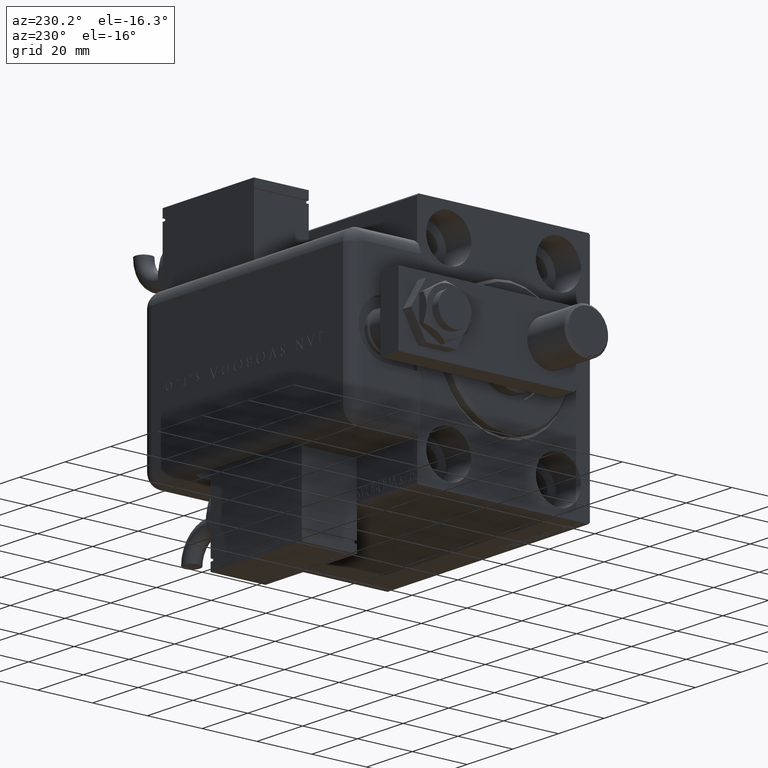
[diagram: clean part render]
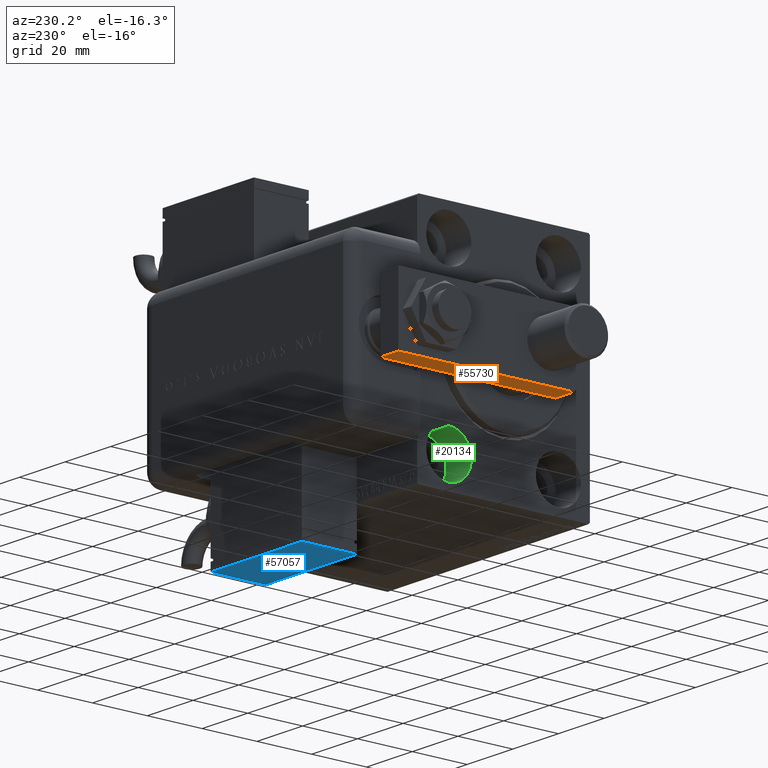
[diagram: same view with three faces highlighted in distinct colors, each labeled with its STEP entity id]
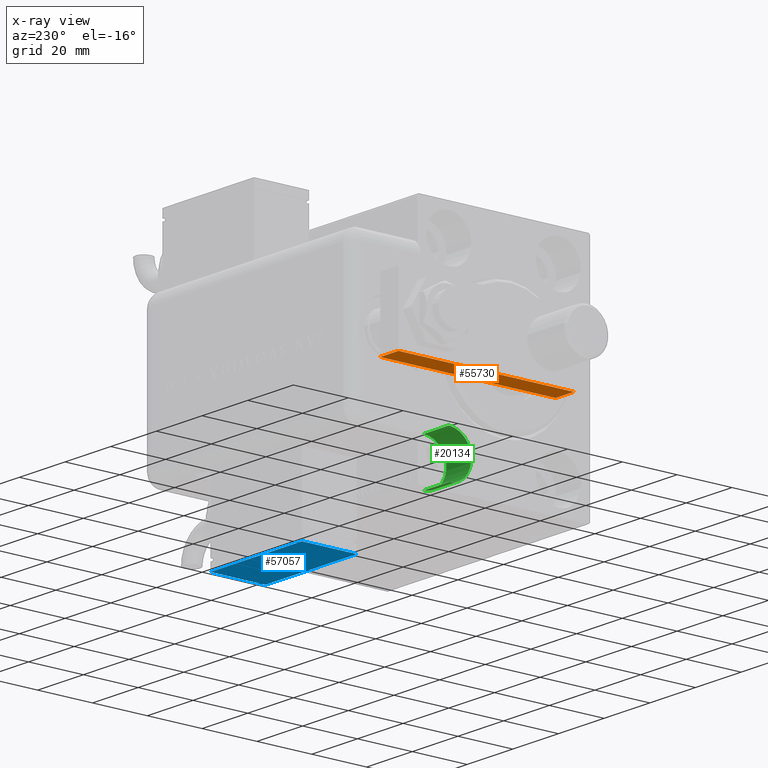
[diagram: x-ray of the same camera — body ghosted, the three highlighted faces saturated]
A machine part, auxiliary view with three faces highlighted in distinct colors.
The next image is the same camera in x-ray (body ghosted, the three faces saturated) — at least one of them is partly hidden behind the body in this view.
Their STEP definitions:

[orange] entity #55730 — the highlighted planar face has unit normal (0, -0, 1).
#1251 = PLANE ( 'NONE',  #55649 ) ;
#2370 = CARTESIAN_POINT ( 'NONE',  ( 12.50000000000001066, 0.000000000000000000, 8.000000000000000000 ) ) ;
#6522 = EDGE_CURVE ( 'NONE', #49824, #42881, #30844, .T. ) ;
#8426 = LINE ( 'NONE', #49368, #34788 ) ;
#10342 = DIRECTION ( 'NONE',  ( 1.257045997084642611E-16, -1.000000000000000000, 0.000000000000000000 ) ) ;
#11127 = CARTESIAN_POINT ( 'NONE',  ( 12.50000000000000178, 69.00000000000000000, 0.000000000000000000 ) ) ;
#14070 = VERTEX_POINT ( 'NONE', #11127 ) ;
#14817 = VECTOR ( 'NONE', #24721, 1000.000000000000000 ) ;
#15630 = CARTESIAN_POINT ( 'NONE',  ( 12.50000000000000178, 69.00000000000000000, 8.000000000000000000 ) ) ;
#17747 = EDGE_CURVE ( 'NONE', #40878, #14070, #8426, .T. ) ;
#19445 = FACE_OUTER_BOUND ( 'NONE', #37268, .T. ) ;
#19771 = CARTESIAN_POINT ( 'NONE',  ( 12.50000000000001066, 5.000000000000003553, 0.000000000000000000 ) ) ;
#21916 = VECTOR ( 'NONE', #51595, 1000.000000000000000 ) ;
#23990 = LINE ( 'NONE', #43081, #21916 ) ;
#24144 = VECTOR ( 'NONE', #30546, 1000.000000000000000 ) ;
#24721 = DIRECTION ( 'NONE',  ( -0.000000000000000000, -0.000000000000000000, -1.000000000000000000 ) ) ;
#25370 = CARTESIAN_POINT ( 'NONE',  ( 12.50000000000001066, 5.000000000000003553, 8.000000000000000000 ) ) ;
#25613 = LINE ( 'NONE', #15630, #14817 ) ;
#30546 = DIRECTION ( 'NONE',  ( -1.257045997084642611E-16, 1.000000000000000000, 0.000000000000000000 ) ) ;
#30844 = LINE ( 'NONE', #2370, #24144 ) ;
#34314 = CARTESIAN_POINT ( 'NONE',  ( 12.50000000000000178, 69.00000000000000000, 8.000000000000000000 ) ) ;
#34788 = VECTOR ( 'NONE', #54230, 1000.000000000000000 ) ;
#36328 = ORIENTED_EDGE ( 'NONE', *, *, #50850, .F. ) ;
#37040 = CARTESIAN_POINT ( 'NONE',  ( 12.50000000000001066, 0.000000000000000000, 8.000000000000000000 ) ) ;
#37268 = EDGE_LOOP ( 'NONE', ( #50620, #48027, #40651, #36328 ) ) ;
#40651 = ORIENTED_EDGE ( 'NONE', *, *, #17747, .T. ) ;
#40878 = VERTEX_POINT ( 'NONE', #19771 ) ;
#42881 = VERTEX_POINT ( 'NONE', #34314 ) ;
#43081 = CARTESIAN_POINT ( 'NONE',  ( 12.50000000000001066, 5.000000000000003553, 8.000000000000000000 ) ) ;
#43156 = EDGE_CURVE ( 'NONE', #49824, #40878, #23990, .T. ) ;
#48027 = ORIENTED_EDGE ( 'NONE', *, *, #43156, .T. ) ;
#49368 = CARTESIAN_POINT ( 'NONE',  ( 12.50000000000001066, 0.000000000000000000, 0.000000000000000000 ) ) ;
#49824 = VERTEX_POINT ( 'NONE', #25370 ) ;
#50620 = ORIENTED_EDGE ( 'NONE', *, *, #6522, .F. ) ;
#50850 = EDGE_CURVE ( 'NONE', #42881, #14070, #25613, .T. ) ;
#51595 = DIRECTION ( 'NONE',  ( 0.000000000000000000, 0.000000000000000000, -1.000000000000000000 ) ) ;
#52202 = DIRECTION ( 'NONE',  ( -1.000000000000000000, -1.257045997084642611E-16, 0.000000000000000000 ) ) ;
#54230 = DIRECTION ( 'NONE',  ( -1.257045997084642611E-16, 1.000000000000000000, 0.000000000000000000 ) ) ;
#55649 = AXIS2_PLACEMENT_3D ( 'NONE', #37040, #52202, #10342 ) ;
#55730 = ADVANCED_FACE ( 'NONE', ( #19445 ), #1251, .F. ) ;

[blue] entity #57057 — the highlighted planar face has unit normal (0, 0, 1).
#6322 = CARTESIAN_POINT ( 'NONE',  ( 20.00000000000005329, -17.49999999999996092, -9.999999999999998224 ) ) ;
#6857 = DIRECTION ( 'NONE',  ( 1.000000000000000000, 0.000000000000000000, 0.000000000000000000 ) ) ;
#8022 = CARTESIAN_POINT ( 'NONE',  ( 0.000000000000000000, -17.49999999999996092, 0.000000000000000000 ) ) ;
#8318 = DIRECTION ( 'NONE',  ( 0.000000000000000000, -0.000000000000000000, 1.000000000000000000 ) ) ;
#11582 = LINE ( 'NONE', #12485, #51572 ) ;
#12240 = ORIENTED_EDGE ( 'NONE', *, *, #37558, .T. ) ;
#12485 = CARTESIAN_POINT ( 'NONE',  ( 20.00000000000005329, -17.49999999999996092, -9.999999999999998224 ) ) ;
#13220 = DIRECTION ( 'NONE',  ( -1.000000000000000000, -0.000000000000000000, -0.000000000000000000 ) ) ;
#13448 = PLANE ( 'NONE',  #41167 ) ;
#15965 = DIRECTION ( 'NONE',  ( -0.000000000000000000, -0.000000000000000000, -1.000000000000000000 ) ) ;
#17400 = DIRECTION ( 'NONE',  ( 0.000000000000000000, 1.000000000000000000, 0.000000000000000000 ) ) ;
#17763 = LINE ( 'NONE', #36267, #20654 ) ;
#20211 = LINE ( 'NONE', #38711, #43986 ) ;
#20654 = VECTOR ( 'NONE', #13220, 1000.000000000000000 ) ;
#24011 = VERTEX_POINT ( 'NONE', #41664 ) ;
#29452 = EDGE_CURVE ( 'NONE', #54100, #24011, #11582, .T. ) ;
#31608 = EDGE_LOOP ( 'NONE', ( #38344, #32391, #12240, #56790 ) ) ;
#32391 = ORIENTED_EDGE ( 'NONE', *, *, #51986, .T. ) ;
#35234 = DIRECTION ( 'NONE',  ( 0.000000000000000000, 0.000000000000000000, 1.000000000000000000 ) ) ;
#36083 = VERTEX_POINT ( 'NONE', #40010 ) ;
#36267 = CARTESIAN_POINT ( 'NONE',  ( -19.99999999999994316, -17.49999999999996092, 10.00000000000000000 ) ) ;
#36566 = CARTESIAN_POINT ( 'NONE',  ( -19.99999999999994316, -17.49999999999996092, 10.00000000000000000 ) ) ;
#37558 = EDGE_CURVE ( 'NONE', #56713, #36083, #20211, .T. ) ;
#38344 = ORIENTED_EDGE ( 'NONE', *, *, #29452, .T. ) ;
#38711 = CARTESIAN_POINT ( 'NONE',  ( -19.99999999999994316, -17.49999999999996092, -9.999999999999998224 ) ) ;
#40010 = CARTESIAN_POINT ( 'NONE',  ( -19.99999999999994316, -17.49999999999996092, -9.999999999999998224 ) ) ;
#41167 = AXIS2_PLACEMENT_3D ( 'NONE', #8022, #17400, #8318 ) ;
#41664 = CARTESIAN_POINT ( 'NONE',  ( 20.00000000000005329, -17.49999999999996092, 10.00000000000000000 ) ) ;
#43986 = VECTOR ( 'NONE', #15965, 1000.000000000000000 ) ;
#44117 = LINE ( 'NONE', #48374, #45770 ) ;
#45770 = VECTOR ( 'NONE', #6857, 1000.000000000000000 ) ;
#48374 = CARTESIAN_POINT ( 'NONE',  ( -19.99999999999994316, -17.49999999999996092, -9.999999999999998224 ) ) ;
#50922 = EDGE_CURVE ( 'NONE', #36083, #54100, #44117, .T. ) ;
#51572 = VECTOR ( 'NONE', #35234, 1000.000000000000000 ) ;
#51986 = EDGE_CURVE ( 'NONE', #24011, #56713, #17763, .T. ) ;
#54100 = VERTEX_POINT ( 'NONE', #6322 ) ;
#55016 = FACE_OUTER_BOUND ( 'NONE', #31608, .T. ) ;
#56713 = VERTEX_POINT ( 'NONE', #36566 ) ;
#56790 = ORIENTED_EDGE ( 'NONE', *, *, #50922, .T. ) ;
#57057 = ADVANCED_FACE ( 'NONE', ( #55016 ), #13448, .F. ) ;

[green] entity #20134 — the highlighted cylindrical surface (edge-blend (fillet) strip) has radius 8.25 mm, axis along (-1, -0, -0).
#612 = EDGE_CURVE ( 'NONE', #31782, #18351, #37986, .T. ) ;
#1178 = DIRECTION ( 'NONE',  ( 0.000000000000000000, 0.000000000000000000, 1.000000000000000000 ) ) ;
#1512 = CARTESIAN_POINT ( 'NONE',  ( 11.00000000000000000, 19.99999999999999645, -39.74999999999999289 ) ) ;
#3206 = DIRECTION ( 'NONE',  ( -1.000000000000000000, 0.000000000000000000, 0.000000000000000000 ) ) ;
#4802 = AXIS2_PLACEMENT_3D ( 'NONE', #7768, #3206, #31972 ) ;
#6231 = ORIENTED_EDGE ( 'NONE', *, *, #35390, .F. ) ;
#7768 = CARTESIAN_POINT ( 'NONE',  ( 11.00000000000000000, 19.99999999999999645, -31.49999999999999289 ) ) ;
#9544 = FACE_OUTER_BOUND ( 'NONE', #48767, .T. ) ;
#10137 = VECTOR ( 'NONE', #22613, 1000.000000000000000 ) ;
#10586 = ORIENTED_EDGE ( 'NONE', *, *, #24596, .T. ) ;
#10742 = DIRECTION ( 'NONE',  ( 0.000000000000000000, 0.000000000000000000, 1.000000000000000000 ) ) ;
#14511 = DIRECTION ( 'NONE',  ( -1.000000000000000000, 0.000000000000000000, 0.000000000000000000 ) ) ;
#16788 = ORIENTED_EDGE ( 'NONE', *, *, #612, .T. ) ;
#18351 = VERTEX_POINT ( 'NONE', #40775 ) ;
#18376 = EDGE_CURVE ( 'NONE', #31782, #51581, #48386, .T. ) ;
#19190 = CARTESIAN_POINT ( 'NONE',  ( 11.00000000000000000, 19.99999999999999645, -23.24999999999999289 ) ) ;
#20134 = ADVANCED_FACE ( 'NONE', ( #9544 ), #47732, .F. ) ;
#22613 = DIRECTION ( 'NONE',  ( -1.000000000000000000, -0.000000000000000000, -0.000000000000000000 ) ) ;
#24596 = EDGE_CURVE ( 'NONE', #18351, #59839, #39714, .T. ) ;
#27183 = CARTESIAN_POINT ( 'NONE',  ( 0.000000000000000000, 19.99999999999999645, -23.24999999999999289 ) ) ;
#28287 = DIRECTION ( 'NONE',  ( -1.000000000000000000, -0.000000000000000000, -0.000000000000000000 ) ) ;
#28933 = CARTESIAN_POINT ( 'NONE',  ( 11.00000000000000000, 19.99999999999999645, -31.49999999999999289 ) ) ;
#31782 = VERTEX_POINT ( 'NONE', #1512 ) ;
#31972 = DIRECTION ( 'NONE',  ( 0.000000000000000000, 0.000000000000000000, 1.000000000000000000 ) ) ;
#32242 = CARTESIAN_POINT ( 'NONE',  ( 11.00000000000000000, 19.99999999999999645, -39.74999999999999289 ) ) ;
#33441 = CARTESIAN_POINT ( 'NONE',  ( 11.00000000000000000, 19.99999999999999645, -23.24999999999999289 ) ) ;
#35390 = EDGE_CURVE ( 'NONE', #51581, #59839, #54786, .T. ) ;
#36312 = ORIENTED_EDGE ( 'NONE', *, *, #18376, .F. ) ;
#37986 = LINE ( 'NONE', #32242, #49080 ) ;
#39714 = CIRCLE ( 'NONE', #55223, 8.250000000000000000 ) ;
#40775 = CARTESIAN_POINT ( 'NONE',  ( 0.000000000000000000, 19.99999999999999645, -39.74999999999999289 ) ) ;
#47270 = CARTESIAN_POINT ( 'NONE',  ( 0.000000000000000000, 19.99999999999999645, -31.49999999999999289 ) ) ;
#47732 = CYLINDRICAL_SURFACE ( 'NONE', #54282, 8.250000000000000000 ) ;
#48386 = CIRCLE ( 'NONE', #4802, 8.250000000000000000 ) ;
#48767 = EDGE_LOOP ( 'NONE', ( #36312, #16788, #10586, #6231 ) ) ;
#49080 = VECTOR ( 'NONE', #28287, 1000.000000000000000 ) ;
#51581 = VERTEX_POINT ( 'NONE', #19190 ) ;
#52299 = DIRECTION ( 'NONE',  ( -1.000000000000000000, -0.000000000000000000, -0.000000000000000000 ) ) ;
#54282 = AXIS2_PLACEMENT_3D ( 'NONE', #28933, #52299, #10742 ) ;
#54786 = LINE ( 'NONE', #33441, #10137 ) ;
#55223 = AXIS2_PLACEMENT_3D ( 'NONE', #47270, #14511, #1178 ) ;
#59839 = VERTEX_POINT ( 'NONE', #27183 ) ;